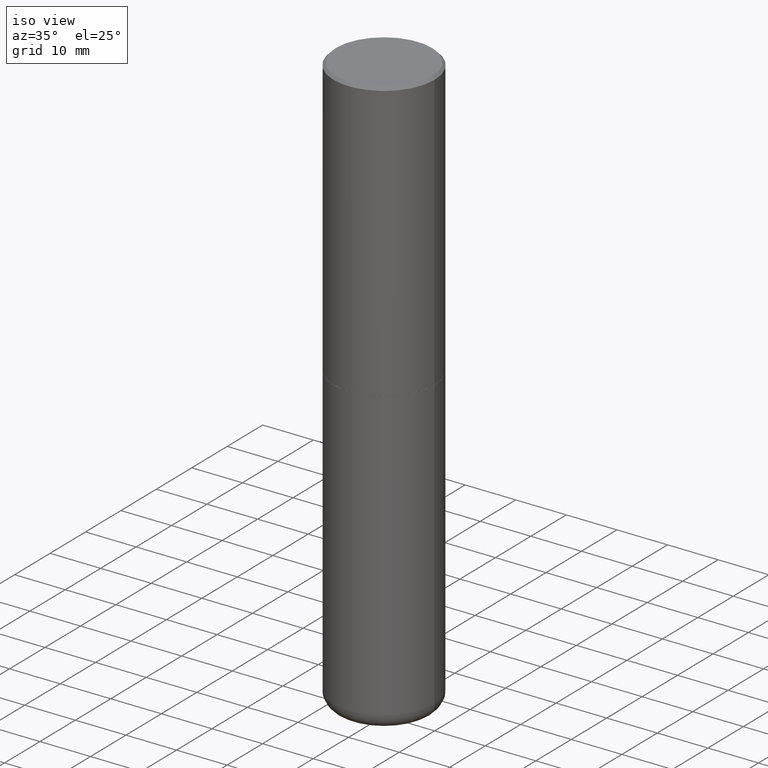
[diagram: clean part render]
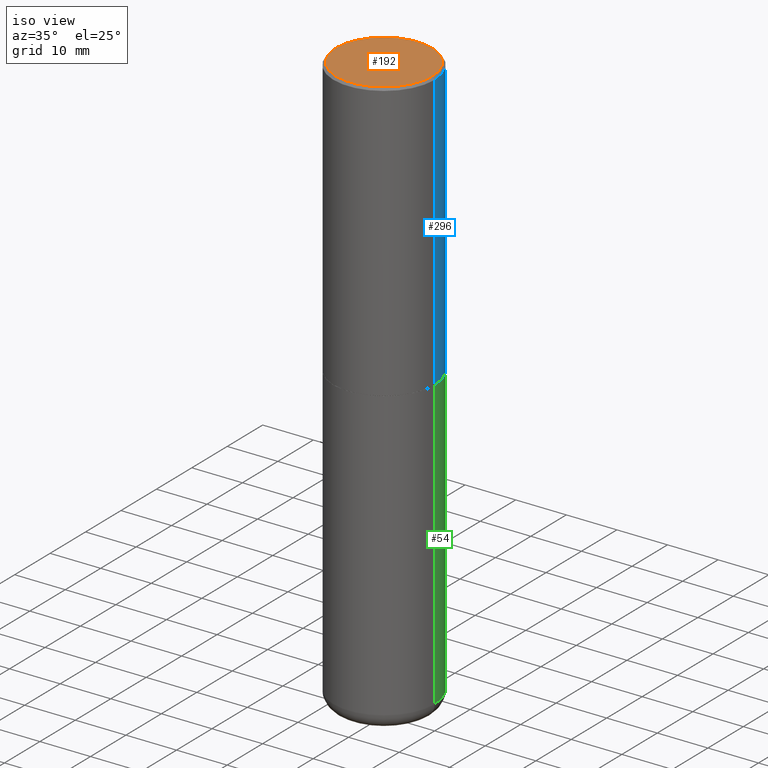
[diagram: same view with three faces highlighted in distinct colors, each labeled with its STEP entity id]
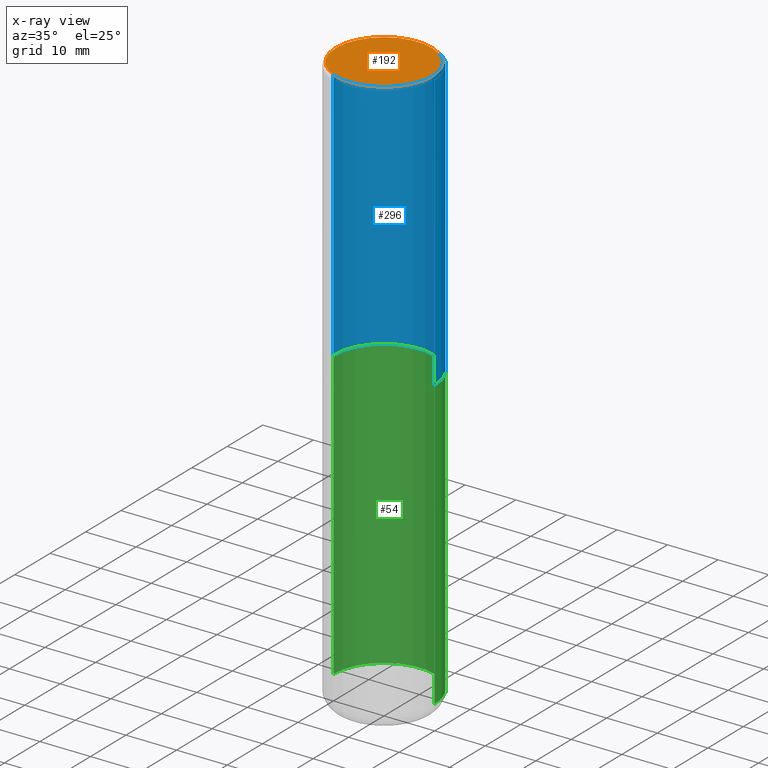
[diagram: x-ray of the same camera — body ghosted, the three highlighted faces saturated]
A machine part, iso view with three faces highlighted in distinct colors.
The next image is the same camera in x-ray (body ghosted, the three faces saturated) — at least one of them is partly hidden behind the body in this view.
Their STEP definitions:

[orange] entity #192 — the highlighted planar face has unit normal (0, -0, -1).
#18 = DIRECTION ( 'NONE',  ( -2.445468806185136597E-29, 3.491481338843145583E-15, 1.000000000000000000 ) ) ;
#20 = DIRECTION ( 'NONE',  ( 1.000000000000000000, -6.982962677686266711E-15, 4.875705233642009010E-29 ) ) ;
#92 = CARTESIAN_POINT ( 'NONE',  ( -0.3737000000000000322, 2.644447966039789058E-15, -6.402768735152454409E-17 ) ) ;
#126 = VERTEX_POINT ( 'NONE', #92 ) ;
#138 = EDGE_LOOP ( 'NONE', ( #297, #205 ) ) ;
#144 = CARTESIAN_POINT ( 'NONE',  ( 1.565777121502829671E-45, -2.235514755570671047E-31, -6.402768735150616610E-17 ) ) ;
#183 = PLANE ( 'NONE',  #411 ) ;
#187 = CARTESIAN_POINT ( 'NONE',  ( 1.565777121502829671E-45, -2.235514755570671047E-31, -6.402768735150616610E-17 ) ) ;
#192 = ADVANCED_FACE ( 'NONE', ( #311 ), #183, .F. ) ;
#205 = ORIENTED_EDGE ( 'NONE', *, *, #313, .T. ) ;
#220 = DIRECTION ( 'NONE',  ( 1.000000000000000000, -6.982962677686266711E-15, 4.875705233642009010E-29 ) ) ;
#255 = VERTEX_POINT ( 'NONE', #400 ) ;
#271 = EDGE_CURVE ( 'NONE', #126, #255, #401, .T. ) ;
#281 = CARTESIAN_POINT ( 'NONE',  ( 2.609533152651357803E-15, 0.3737000000000000322, -1.336780420001436835E-15 ) ) ;
#297 = ORIENTED_EDGE ( 'NONE', *, *, #271, .T. ) ;
#311 = FACE_OUTER_BOUND ( 'NONE', #138, .T. ) ;
#313 = EDGE_CURVE ( 'NONE', #255, #126, #413, .T. ) ;
#314 = DIRECTION ( 'NONE',  ( -2.445468806185136597E-29, 3.491481338843145583E-15, 1.000000000000000000 ) ) ;
#318 = AXIS2_PLACEMENT_3D ( 'NONE', #187, #314, #20 ) ;
#341 = DIRECTION ( 'NONE',  ( 2.438088387897960049E-29, -3.491481338843145188E-15, -1.000000000000000000 ) ) ;
#369 = DIRECTION ( 'NONE',  ( -1.000000000000000000, 6.982962677686265922E-15, -4.876176775795935793E-29 ) ) ;
#395 = AXIS2_PLACEMENT_3D ( 'NONE', #144, #18, #220 ) ;
#400 = CARTESIAN_POINT ( 'NONE',  ( 0.3737000000000000322, -2.667287895133368753E-15, -6.402768735148772648E-17 ) ) ;
#401 = CIRCLE ( 'NONE', #395, 0.3737000000000000322 ) ;
#411 = AXIS2_PLACEMENT_3D ( 'NONE', #281, #341, #369 ) ;
#413 = CIRCLE ( 'NONE', #318, 0.3737000000000000322 ) ;

[blue] entity #296 — the highlighted cylindrical surface (partial cylindrical patch) has radius 10 mm, axis along (-0, 0, 1).
#15 = EDGE_CURVE ( 'NONE', #293, #333, #148, .T. ) ;
#33 = VERTEX_POINT ( 'NONE', #214 ) ;
#34 = CARTESIAN_POINT ( 'NONE',  ( 0.3937000000000001609, -2.749192406205084400E-15, 1.919750796630860732E-29 ) ) ;
#38 = CARTESIAN_POINT ( 'NONE',  ( 5.292972684107107621E-29, -7.556962209792102838E-15, -2.164399999999999658 ) ) ;
#48 = DIRECTION ( 'NONE',  ( -2.445468806185136877E-29, 3.491481338843145188E-15, 1.000000000000000000 ) ) ;
#49 = DIRECTION ( 'NONE',  ( 1.000000000000000000, -6.982962677686266711E-15, 4.876176775795935793E-29 ) ) ;
#55 = VECTOR ( 'NONE', #48, 39.37007874015748143 ) ;
#77 = DIRECTION ( 'NONE',  ( 1.000000000000000000, -6.982962677686265922E-15, 0.000000000000000000 ) ) ;
#85 = DIRECTION ( 'NONE',  ( -2.445468806185136597E-29, 3.491481338843145583E-15, 1.000000000000000000 ) ) ;
#86 = CIRCLE ( 'NONE', #172, 0.3937000000000000499 ) ;
#95 = VERTEX_POINT ( 'NONE', #103 ) ;
#103 = CARTESIAN_POINT ( 'NONE',  ( -0.3937000000000000499, 2.679362779428219918E-15, -0.02000000000000008715 ) ) ;
#111 = DIRECTION ( 'NONE',  ( -2.445468806185136597E-29, 3.491481338843145583E-15, 1.000000000000000000 ) ) ;
#141 = CARTESIAN_POINT ( 'NONE',  ( -0.3937000000000003830, -1.015989167596963746E-15, -2.164399999999999658 ) ) ;
#148 = CIRCLE ( 'NONE', #322, 0.3937000000000002720 ) ;
#155 = ORIENTED_EDGE ( 'NONE', *, *, #257, .F. ) ;
#170 = EDGE_CURVE ( 'NONE', #293, #33, #204, .T. ) ;
#172 = AXIS2_PLACEMENT_3D ( 'NONE', #251, #111, #77 ) ;
#175 = DIRECTION ( 'NONE',  ( -2.445468806185136597E-29, 3.491481338843145583E-15, 1.000000000000000000 ) ) ;
#185 = LINE ( 'NONE', #309, #55 ) ;
#204 = LINE ( 'NONE', #34, #363 ) ;
#214 = CARTESIAN_POINT ( 'NONE',  ( 0.3937000000000000499, -2.770807688499515734E-15, -0.02000000000000008715 ) ) ;
#221 = CARTESIAN_POINT ( 'NONE',  ( 0.3937000000000002720, -1.030615461599718763E-14, -2.164399999999999658 ) ) ;
#241 = DIRECTION ( 'NONE',  ( 1.000000000000000000, -6.982962677686269077E-15, 0.000000000000000000 ) ) ;
#245 = FACE_OUTER_BOUND ( 'NONE', #268, .T. ) ;
#251 = CARTESIAN_POINT ( 'NONE',  ( 4.890937612370294178E-31, -6.982962677686321191E-17, -0.02000000000000008715 ) ) ;
#254 = AXIS2_PLACEMENT_3D ( 'NONE', #344, #85, #49 ) ;
#257 = EDGE_CURVE ( 'NONE', #33, #95, #86, .T. ) ;
#268 = EDGE_LOOP ( 'NONE', ( #396, #357, #155, #362 ) ) ;
#293 = VERTEX_POINT ( 'NONE', #221 ) ;
#296 = ADVANCED_FACE ( 'NONE', ( #245 ), #375, .T. ) ;
#309 = CARTESIAN_POINT ( 'NONE',  ( -0.3937000000000001609, 2.797406750687515575E-15, -1.936584745033357296E-29 ) ) ;
#322 = AXIS2_PLACEMENT_3D ( 'NONE', #38, #175, #241 ) ;
#326 = DIRECTION ( 'NONE',  ( -2.445468806185136877E-29, 3.491481338843145188E-15, 1.000000000000000000 ) ) ;
#333 = VERTEX_POINT ( 'NONE', #141 ) ;
#344 = CARTESIAN_POINT ( 'NONE',  ( 0.000000000000000000, 0.000000000000000000, 0.000000000000000000 ) ) ;
#357 = ORIENTED_EDGE ( 'NONE', *, *, #410, .T. ) ;
#362 = ORIENTED_EDGE ( 'NONE', *, *, #170, .F. ) ;
#363 = VECTOR ( 'NONE', #326, 39.37007874015748143 ) ;
#375 = CYLINDRICAL_SURFACE ( 'NONE', #254, 0.3937000000000001609 ) ;
#396 = ORIENTED_EDGE ( 'NONE', *, *, #15, .T. ) ;
#410 = EDGE_CURVE ( 'NONE', #333, #95, #185, .T. ) ;

[green] entity #54 — the highlighted cylindrical surface (partial cylindrical patch) has radius 10 mm, axis along (-0, 0, 1).
#4 = ORIENTED_EDGE ( 'NONE', *, *, #368, .F. ) ;
#8 = VERTEX_POINT ( 'NONE', #70 ) ;
#9 = EDGE_CURVE ( 'NONE', #132, #200, #72, .T. ) ;
#27 = CARTESIAN_POINT ( 'NONE',  ( 1.078329470087335798E-28, -1.539568696362884818E-14, -4.409499999999999531 ) ) ;
#29 = DIRECTION ( 'NONE',  ( -2.445468806185136597E-29, 3.491481338843145583E-15, 1.000000000000000000 ) ) ;
#35 = ORIENTED_EDGE ( 'NONE', *, *, #76, .T. ) ;
#40 = DIRECTION ( 'NONE',  ( -2.445468806185136877E-29, 3.491481338843145188E-15, 1.000000000000000000 ) ) ;
#45 = LINE ( 'NONE', #109, #345 ) ;
#54 = ADVANCED_FACE ( 'NONE', ( #82 ), #198, .T. ) ;
#56 = DIRECTION ( 'NONE',  ( 1.000000000000000000, -6.982962677686265133E-15, 0.000000000000000000 ) ) ;
#66 = ORIENTED_EDGE ( 'NONE', *, *, #233, .F. ) ;
#70 = CARTESIAN_POINT ( 'NONE',  ( 0.3936999999999998834, -1.814487936983393140E-14, -4.409499999999999531 ) ) ;
#72 = LINE ( 'NONE', #211, #193 ) ;
#76 = EDGE_CURVE ( 'NONE', #8, #132, #394, .T. ) ;
#82 = FACE_OUTER_BOUND ( 'NONE', #393, .T. ) ;
#93 = AXIS2_PLACEMENT_3D ( 'NONE', #290, #118, #380 ) ;
#96 = VERTEX_POINT ( 'NONE', #358 ) ;
#109 = CARTESIAN_POINT ( 'NONE',  ( 0.3937000000000000499, -2.749192406205083217E-15, 1.919750796630860172E-29 ) ) ;
#118 = DIRECTION ( 'NONE',  ( -2.445468806185136597E-29, 3.491481338843145583E-15, 1.000000000000000000 ) ) ;
#123 = DIRECTION ( 'NONE',  ( 1.000000000000000000, -6.982962677686262766E-15, 0.000000000000000000 ) ) ;
#132 = VERTEX_POINT ( 'NONE', #215 ) ;
#154 = CARTESIAN_POINT ( 'NONE',  ( 5.295418152913293224E-29, -7.560453691130945845E-15, -2.165399999999999547 ) ) ;
#159 = DIRECTION ( 'NONE',  ( -2.445468806185136597E-29, 3.491481338843145583E-15, 1.000000000000000000 ) ) ;
#164 = AXIS2_PLACEMENT_3D ( 'NONE', #27, #159, #123 ) ;
#179 = DIRECTION ( 'NONE',  ( -2.445468806185136877E-29, 3.491481338843145188E-15, 1.000000000000000000 ) ) ;
#191 = ORIENTED_EDGE ( 'NONE', *, *, #9, .T. ) ;
#193 = VECTOR ( 'NONE', #40, 39.37007874015748143 ) ;
#198 = CYLINDRICAL_SURFACE ( 'NONE', #93, 0.3937000000000000499 ) ;
#200 = VERTEX_POINT ( 'NONE', #282 ) ;
#211 = CARTESIAN_POINT ( 'NONE',  ( -0.3937000000000000499, 2.797406750687514786E-15, -1.936584745033356735E-29 ) ) ;
#215 = CARTESIAN_POINT ( 'NONE',  ( -0.3936999999999998834, -1.259828021294133576E-14, -4.409499999999999531 ) ) ;
#233 = EDGE_CURVE ( 'NONE', #8, #96, #45, .T. ) ;
#240 = AXIS2_PLACEMENT_3D ( 'NONE', #154, #29, #56 ) ;
#282 = CARTESIAN_POINT ( 'NONE',  ( -0.3937000000000000499, -8.680663576692383017E-15, -2.165399999999999547 ) ) ;
#290 = CARTESIAN_POINT ( 'NONE',  ( 0.000000000000000000, 0.000000000000000000, 0.000000000000000000 ) ) ;
#294 = CIRCLE ( 'NONE', #240, 0.3937000000000000499 ) ;
#345 = VECTOR ( 'NONE', #179, 39.37007874015748143 ) ;
#358 = CARTESIAN_POINT ( 'NONE',  ( 0.3937000000000000499, -1.030964609733602906E-14, -2.165399999999999547 ) ) ;
#368 = EDGE_CURVE ( 'NONE', #96, #200, #294, .T. ) ;
#380 = DIRECTION ( 'NONE',  ( 1.000000000000000000, -6.982962677686265922E-15, 4.876176775795935793E-29 ) ) ;
#393 = EDGE_LOOP ( 'NONE', ( #35, #191, #4, #66 ) ) ;
#394 = CIRCLE ( 'NONE', #164, 0.3937000000000000499 ) ;